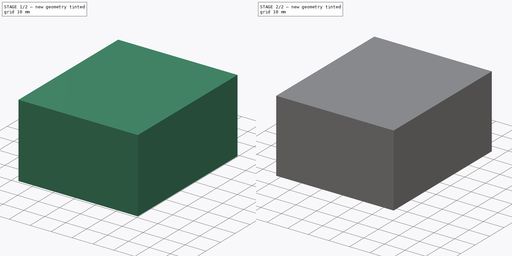
[diagram: build sequence overview — one tinted view per stage of 2, left to right]
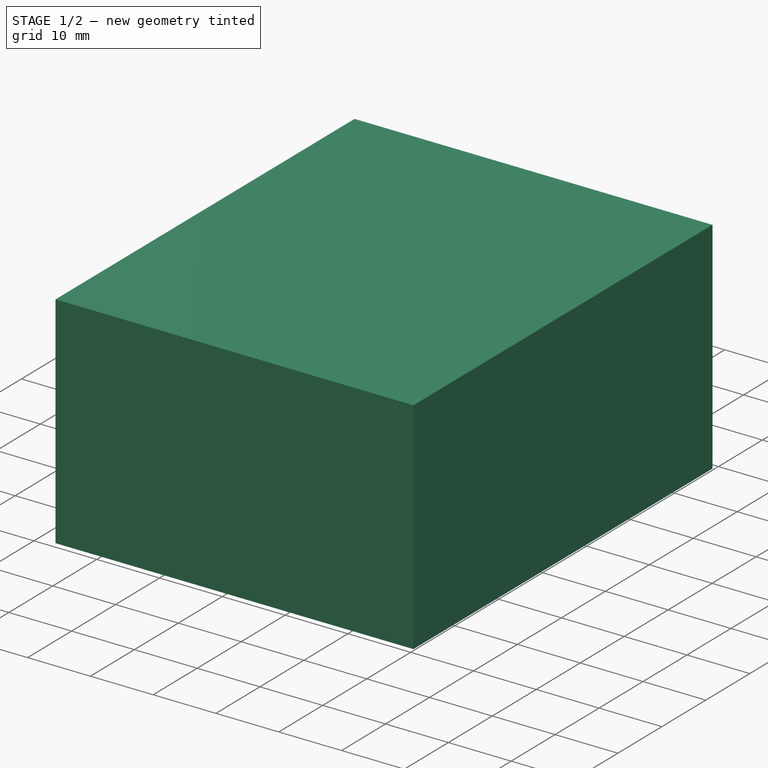
[diagram: stage 1 of 2 — iso view after this stage's code; geometry added in this stage tinted green]
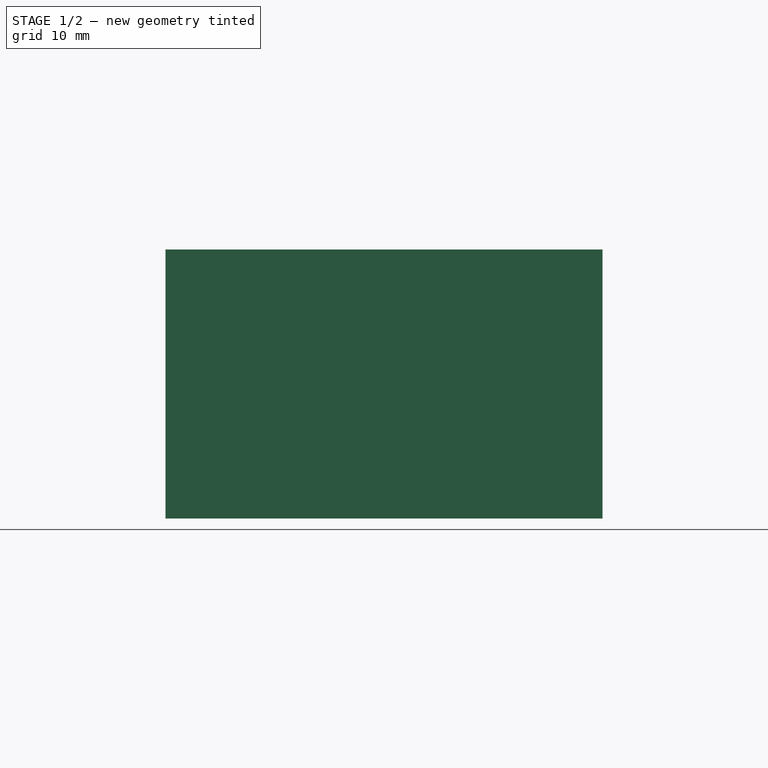
[diagram: stage 1 of 2 — front view after this stage's code; geometry added in this stage tinted green]
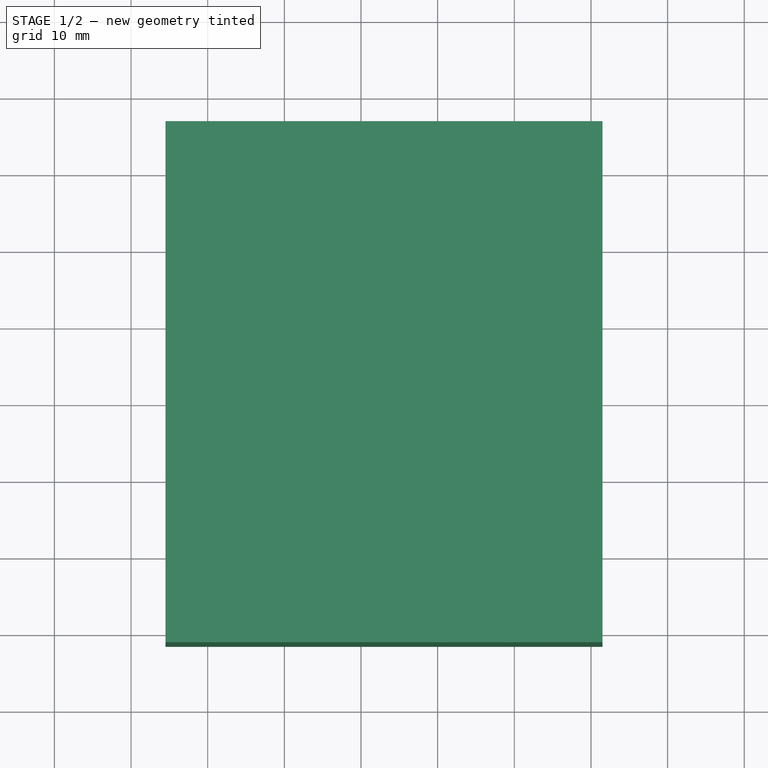
[diagram: stage 1 of 2 — top view after this stage's code; geometry added in this stage tinted green]
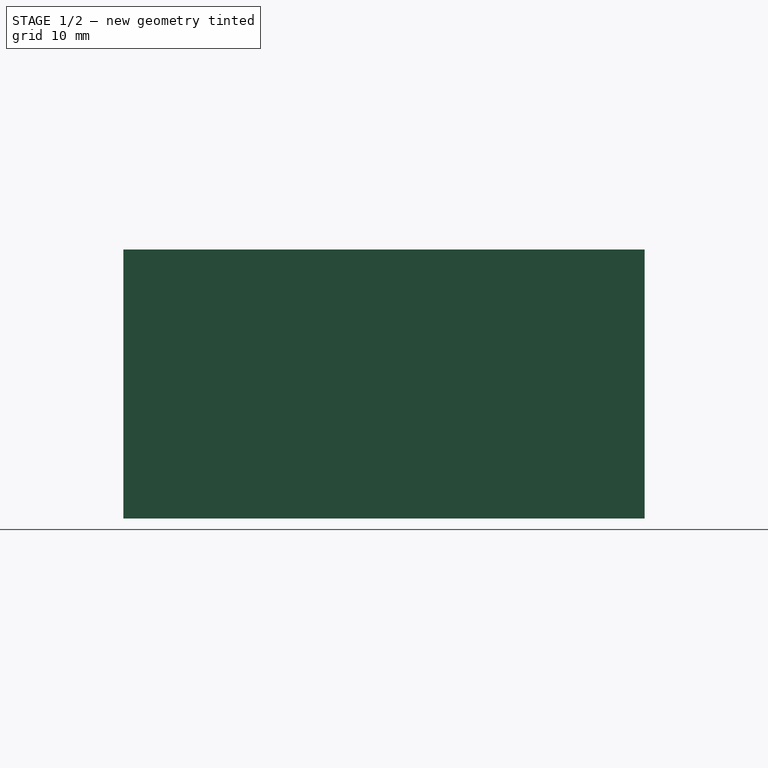
[diagram: stage 1 of 2 — right view after this stage's code; geometry added in this stage tinted green]
FCSTD DOCUMENT  (FreeCAD 0.17R13541 (Git))
Label: Myrra_UI_39x21_30VA
License: All rights reserved
LicenseURL: http://en.wikipedia.org/wiki/All_rights_reserved
objects: Sketcher::SketchObject×3, PartDesign::Pad×3, Part::Feature×2, PartDesign::Body×1
note: 12 computed .brp shape members not serialized (recipe doc carries the construction recipe); baked Part::Feature solids carry a one-line shape summary decoded from their .brp

FEATURE [Sketcher::SketchObject] Sketch002
  MapMode = 5
  Support = -> [XY_Plane001]
  sketch-geometry (4):
    g0: LineSegment StartX=-5.5 StartY=56.5 StartZ=0 EndX=51.5 EndY=56.5 EndZ=0
    g1: LineSegment StartX=51.5 StartY=56.5 StartZ=0 EndX=51.5 EndY=-11.5 EndZ=0
    g2: LineSegment StartX=51.5 StartY=-11.5 StartZ=0 EndX=-5.5 EndY=-11.5 EndZ=0
    g3: LineSegment StartX=-5.5 StartY=-11.5 StartZ=0 EndX=-5.5 EndY=56.5 EndZ=0
  constraints (12):
    c: Coincident(g0,g1)
    c: Coincident(g1,g2)
    c: Coincident(g2,g3)
    c: Coincident(g3,g0)
    c: Horizontal(g0)
    c: Horizontal(g2)
    c: Vertical(g1)
    c: Vertical(g3)
    c: DistanceX(g2,g2) = 57
    c: DistanceY(g1,g1) = 68
    c: DistanceX(g2,g-1) = 5.5
    c: DistanceY(g2,g-1) = 11.5
FEATURE [PartDesign::Pad] Pad002
  Length = 35
  Length2 = 100
  Profile = -> Sketch002
  Refine = true
  Type = 0
FEATURE [Sketcher::SketchObject] Sketch001
  AttachmentOffset = pos=(0,0,-4) rot=(0,0,1;0rad)
  MapMode = 5
  Placement = pos=(0,0,-4) rot=(0,0,1;0rad)
  sketch-geometry (8):
    g0: Circle CenterX=0 CenterY=0 CenterZ=0 NormalX=0 NormalY=0 NormalZ=1 AngleXU=0 Radius=0.4
    g1: Circle CenterX=15 CenterY=0 CenterZ=0 NormalX=0 NormalY=0 NormalZ=1 AngleXU=0 Radius=0.4
    g2: Circle CenterX=26 CenterY=0 CenterZ=0 NormalX=0 NormalY=0 NormalZ=1 AngleXU=0 Radius=0.4
    g3: Circle CenterX=41 CenterY=0 CenterZ=0 NormalX=0 NormalY=0 NormalZ=1 AngleXU=0 Radius=0.4
    g4: Circle CenterX=41 CenterY=45 CenterZ=0 NormalX=0 NormalY=0 NormalZ=1 AngleXU=0 Radius=0.4
    g5: Circle CenterX=31 CenterY=45 CenterZ=0 NormalX=0 NormalY=0 NormalZ=1 AngleXU=0 Radius=0.4
    g6: Circle CenterX=15 CenterY=45 CenterZ=0 NormalX=0 NormalY=0 NormalZ=1 AngleXU=0 Radius=0.4
    g7: Circle CenterX=5 CenterY=45 CenterZ=0 NormalX=0 NormalY=0 NormalZ=1 AngleXU=0 Radius=0.4
  constraints (17):
    c: Coincident(g0,g-1)
    c: PointOnObject(g1,g-1)
    c: PointOnObject(g2,g-1)
    c: PointOnObject(g3,g-1)
    c: DistanceX(g-1,g1) = 15
    c: DistanceX(g1,g2) = 11
    c: DistanceX(g2,g3) = 15
    c: DistanceX(g-1,g7) = 5
    c: DistanceY(g-1,g7) = 45
    c: DistanceY(g7,g6) = 0
    c: DistanceY(g6,g5) = 0
    c: DistanceY(g5,g4) = 0
    c: DistanceX(g7,g6) = 10
    c: DistanceX(g6,g5) = 16
    c: DistanceX(g5,g4) = 10
    c: Radius(g0) = 0.4
    c: Equal(g0, g1-g7) x7
FEATURE [Sketcher::SketchObject] Sketch
  AttachmentOffset = pos=(0,0,-0.1) rot=(0,0,1;0rad)
  MapMode = 5
  Placement = pos=(0,0,-0.1) rot=(0,0,1;0rad)
  sketch-geometry (4):
    g0: LineSegment StartX=-5.5 StartY=56.5 StartZ=0 EndX=51.5 EndY=56.5 EndZ=0
    g1: LineSegment StartX=51.5 StartY=56.5 StartZ=0 EndX=51.5 EndY=-11.5 EndZ=0
    g2: LineSegment StartX=51.5 StartY=-11.5 StartZ=0 EndX=-5.5 EndY=-11.5 EndZ=0
    g3: LineSegment StartX=-5.5 StartY=-11.5 StartZ=0 EndX=-5.5 EndY=56.5 EndZ=0
  constraints (12):
    c: Coincident(g0,g1)
    c: Coincident(g1,g2)
    c: Coincident(g2,g3)
    c: Coincident(g3,g0)
    c: Horizontal(g0)
    c: Horizontal(g2)
    c: Vertical(g1)
    c: Vertical(g3)
    c: DistanceX(g2,g2) = 57
    c: DistanceY(g1,g1) = 68
    c: DistanceX(g2,g-1) = 5.5
    c: DistanceY(g2,g-1) = 11.5
FEATURE [PartDesign::Pad] Pad
  Length = 35
  Length2 = 100
  Placement = pos=(0,0,-0.1) rot=(0,0,1;0rad)
  Profile = -> Sketch
  Refine = true
  Type = 0
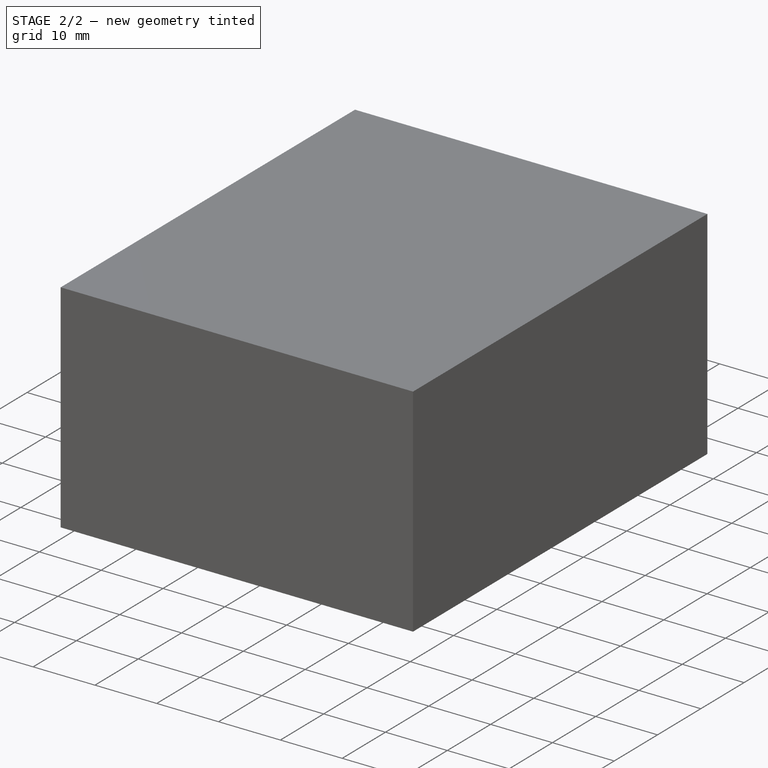
[diagram: stage 2 of 2 — iso view after this stage's code; geometry added in this stage tinted green]
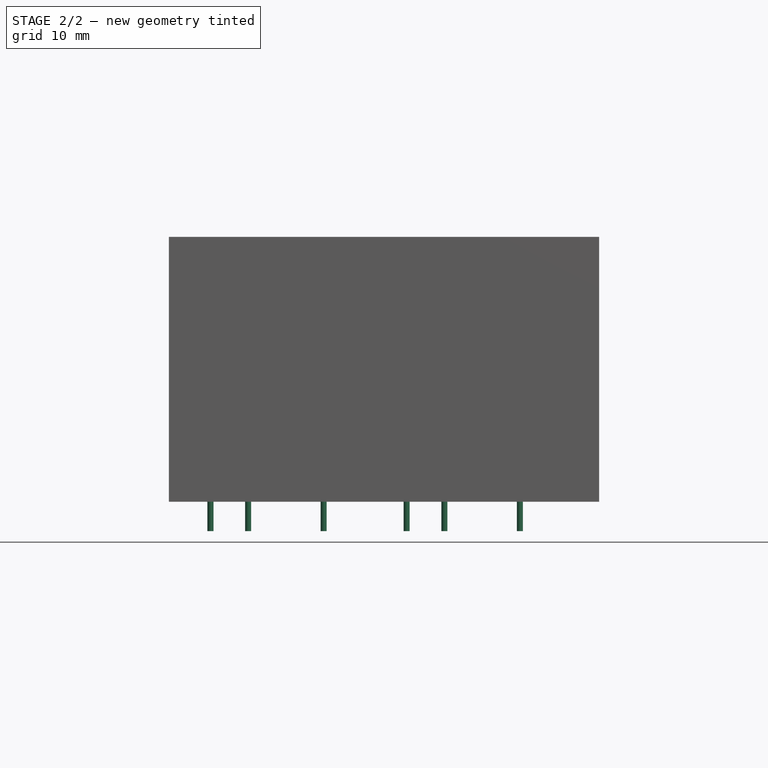
[diagram: stage 2 of 2 — front view after this stage's code; geometry added in this stage tinted green]
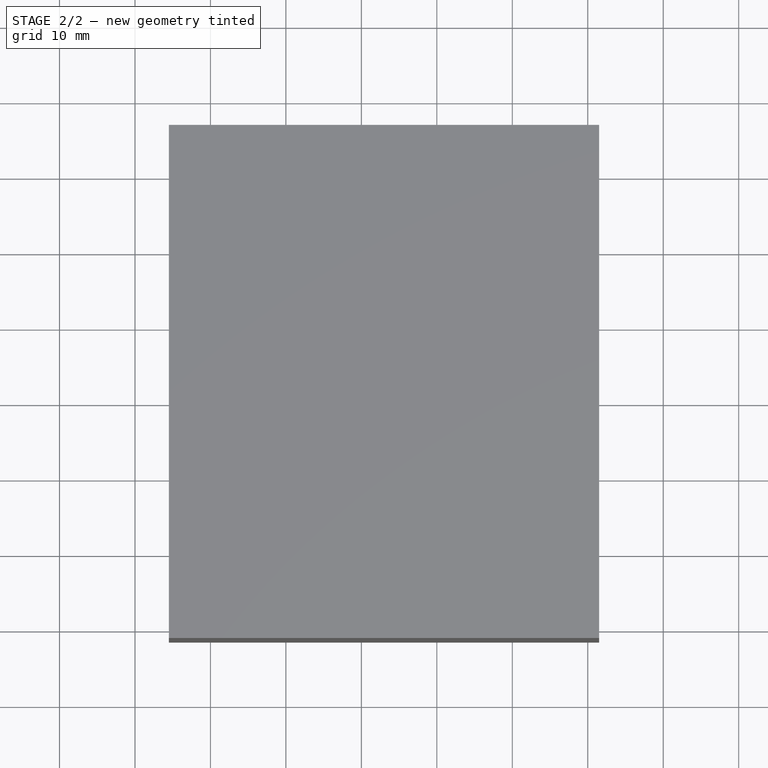
[diagram: stage 2 of 2 — top view after this stage's code; geometry added in this stage tinted green]
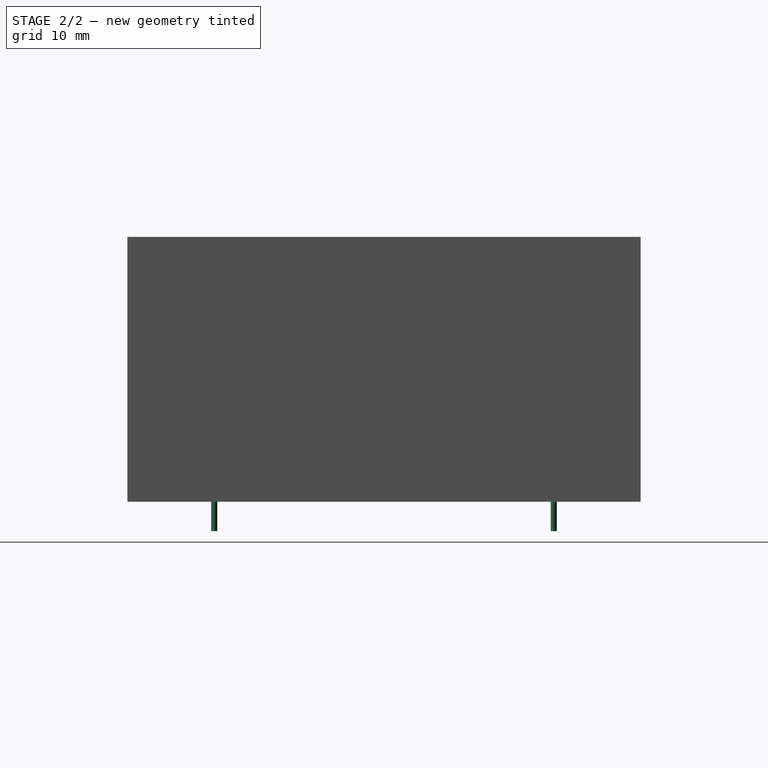
[diagram: stage 2 of 2 — right view after this stage's code; geometry added in this stage tinted green]
FEATURE [PartDesign::Pad] Pad001
  BaseFeature = -> Pad
  Length = 4
  Length2 = 100
  Placement = pos=(0,0,-0.1) rot=(0,0,1;0rad)
  Profile = -> Sketch001
  Refine = true
  Type = 0
FEATURE [PartDesign::Body] Body001
  Group = -> [Sketch002,Pad002]
  Origin = -> Origin001
  Tip = -> Pad002
FEATURE [Part::Feature] Pad001_cp_cp  label="Body_sp"
  shape: bbox 55 x 66 x 4.9 mm, 22 faces (baked)
FEATURE [Part::Feature] Shape  label="Body"
  shape: bbox 57 x 68 x 38.9 mm, 22 faces (baked)
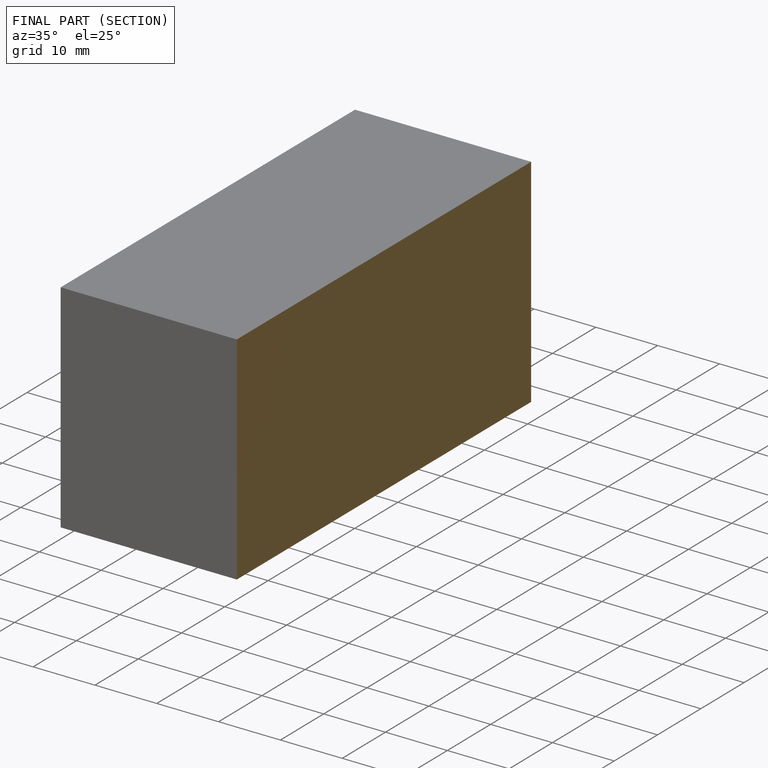
[diagram: finished part — half-section view (interior)]
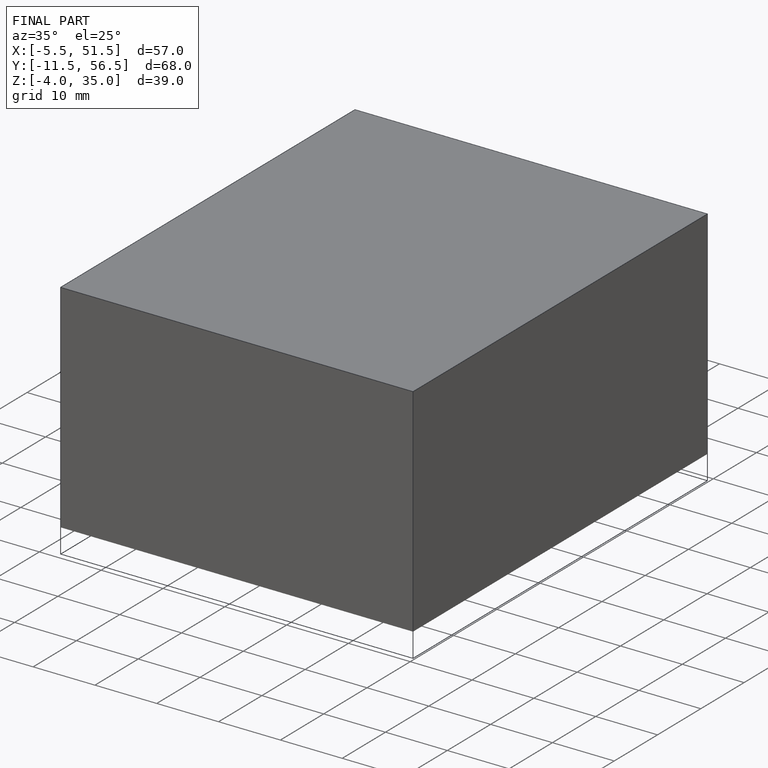
[diagram: finished part — iso view with bounding-box wireframe]
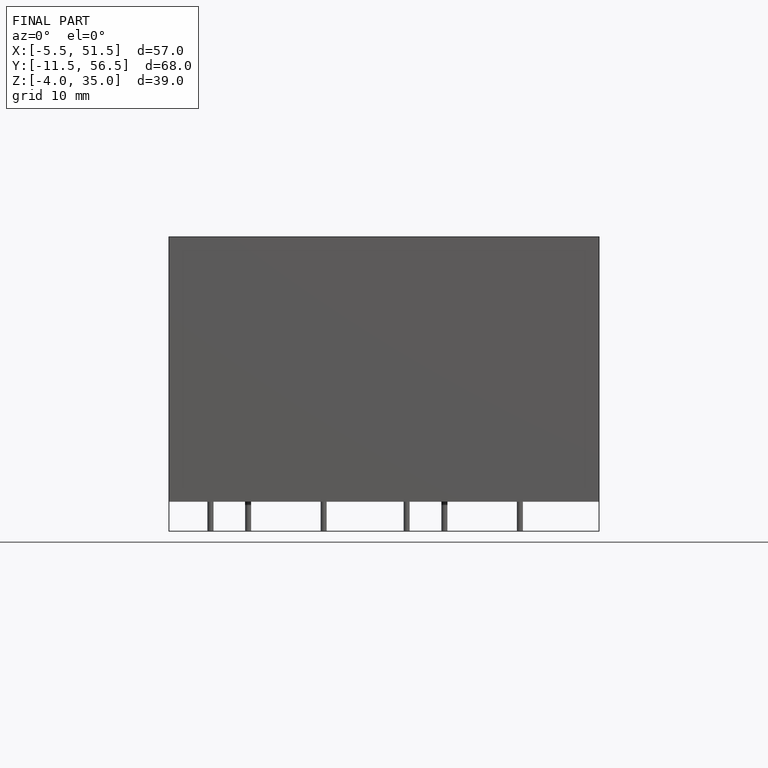
[diagram: finished part — front view with bounding-box wireframe]
